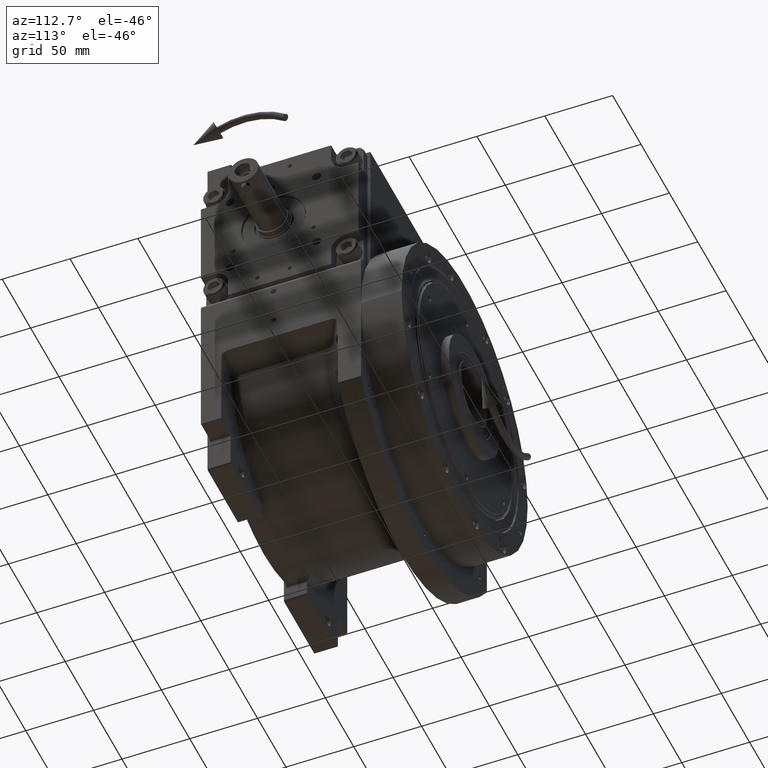
[diagram: clean part render]
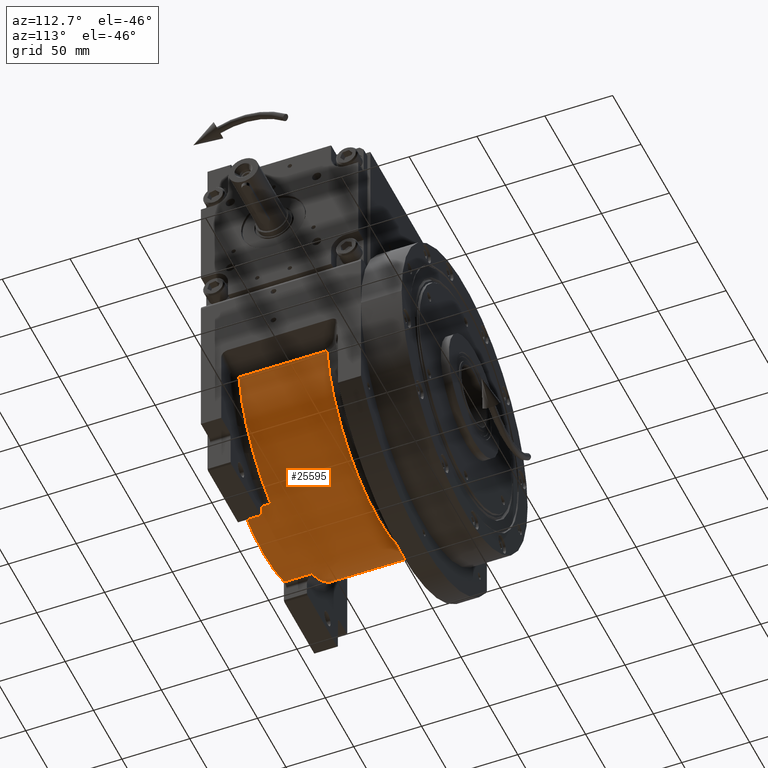
[diagram: same view with one face highlighted and labeled with its STEP entity id]
A machine part, auxiliary view. The second image highlights one B-rep face of the part: STEP entity #25595.
In plain terms, the highlighted cylindrical surface (partial cylindrical patch) has radius 93 mm, axis along (0, 1, 0).
Its self-contained STEP definition (entity closure, byte-faithful):
#5184 = VERTEX_POINT ( 'NONE', #58877 ) ;
#6694 = CARTESIAN_POINT ( 'NONE',  ( -91.75016228501930016, -33.50000000000000000, -15.19564808333695183 ) ) ;
#8334 = EDGE_CURVE ( 'NONE', #34785, #23194, #46282, .T. ) ;
#12113 = EDGE_CURVE ( 'NONE', #22122, #5184, #26976, .T. ) ;
#12313 = CARTESIAN_POINT ( 'NONE',  ( -91.75030103113060420, 31.21878279875124917, -15.19503959111690072 ) ) ;
#12452 = AXIS2_PLACEMENT_3D ( 'NONE', #29819, #30529, #30862 ) ;
#12749 = CARTESIAN_POINT ( 'NONE',  ( 1.421085471520200056E-14, -53.50000000000000000, -4.263256414560599853E-14 ) ) ;
#13279 = ORIENTED_EDGE ( 'NONE', *, *, #47277, .T. ) ;
#14005 = VERTEX_POINT ( 'NONE', #25143 ) ;
#14776 = VECTOR ( 'NONE', #16437, 1000.000000000000000 ) ;
#15525 = AXIS2_PLACEMENT_3D ( 'NONE', #32983, #38231, #54364 ) ;
#16437 = DIRECTION ( 'NONE',  ( 1.776356839400250070E-15, 1.000000000000000000, -7.105427357601000281E-16 ) ) ;
#17989 = CIRCLE ( 'NONE', #12452, 93.00000000000001421 ) ;
#22122 = VERTEX_POINT ( 'NONE', #57634 ) ;
#22787 = FACE_OUTER_BOUND ( 'NONE', #36776, .T. ) ;
#22978 = CARTESIAN_POINT ( 'NONE',  ( -91.75016228508779648, -33.50000000000000000, -15.19564808292360070 ) ) ;
#23194 = VERTEX_POINT ( 'NONE', #50063 ) ;
#24161 = EDGE_CURVE ( 'NONE', #14005, #34785, #44844, .T. ) ;
#24274 = ORIENTED_EDGE ( 'NONE', *, *, #29477, .F. ) ;
#24845 = CARTESIAN_POINT ( 'NONE',  ( 91.75016228514499517, -33.50000000000000000, -15.19564808257825028 ) ) ;
#25143 = CARTESIAN_POINT ( 'NONE',  ( 91.75016228501930016, 31.21878281274259948, -15.19564808333685058 ) ) ;
#25250 = CARTESIAN_POINT ( 'NONE',  ( 1.421085471520200056E-14, -33.50000000000000000, 1.421085471520200056E-14 ) ) ;
#25595 = ADVANCED_FACE ( 'NONE', ( #22787 ), #64873, .T. ) ;
#26281 = VERTEX_POINT ( 'NONE', #22978 ) ;
#26976 = LINE ( 'NONE', #64831, #14776 ) ;
#28399 = ORIENTED_EDGE ( 'NONE', *, *, #49585, .T. ) ;
#28751 = CIRCLE ( 'NONE', #69027, 92.99999999999995737 ) ;
#29477 = EDGE_CURVE ( 'NONE', #14005, #43756, #17989, .T. ) ;
#29819 = CARTESIAN_POINT ( 'NONE',  ( 1.421085471520200056E-14, 31.21878281274215183, 0.000000000000000000 ) ) ;
#30222 = DIRECTION ( 'NONE',  ( 0.000000000000000000, 1.000000000000000000, 0.000000000000000000 ) ) ;
#30529 = DIRECTION ( 'NONE',  ( 5.743225055535190204E-15, 1.000000000000000000, 2.439003765979129920E-14 ) ) ;
#30862 = DIRECTION ( 'NONE',  ( 0.9865608847851539132, -1.678764654171103455E-15, -0.1633940654122239822 ) ) ;
#32983 = CARTESIAN_POINT ( 'NONE',  ( -4.517455316885850268E-28, -53.50000000000000000, 0.000000000000000000 ) ) ;
#34347 = CARTESIAN_POINT ( 'NONE',  ( 91.75016228501930016, 31.21878281274199907, -15.19564808333685058 ) ) ;
#34785 = VERTEX_POINT ( 'NONE', #24845 ) ;
#36776 = EDGE_LOOP ( 'NONE', ( #68263, #54709, #28399, #42315, #24274, #66809, #38997, #13279 ) ) ;
#37628 = VECTOR ( 'NONE', #64174, 1000.000000000000000 ) ;
#38216 = LINE ( 'NONE', #6694, #37628 ) ;
#38231 = DIRECTION ( 'NONE',  ( 0.000000000000000000, 1.000000000000000000, 0.000000000000000000 ) ) ;
#38997 = ORIENTED_EDGE ( 'NONE', *, *, #8334, .T. ) ;
#39581 = CIRCLE ( 'NONE', #55272, 93.00000000000001421 ) ;
#40595 = EDGE_CURVE ( 'NONE', #22122, #68628, #28751, .T. ) ;
#42315 = ORIENTED_EDGE ( 'NONE', *, *, #52198, .T. ) ;
#43756 = VERTEX_POINT ( 'NONE', #12313 ) ;
#44424 = VECTOR ( 'NONE', #55743, 1000.000000000000000 ) ;
#44844 = LINE ( 'NONE', #34347, #44424 ) ;
#45456 = CARTESIAN_POINT ( 'NONE',  ( 35.84375000000000000, -33.50000000000000000, -85.81506619433150718 ) ) ;
#46282 = CIRCLE ( 'NONE', #58656, 93.00000000000001421 ) ;
#47277 = EDGE_CURVE ( 'NONE', #23194, #68628, #50436, .T. ) ;
#49392 = DIRECTION ( 'NONE',  ( 0.000000000000000000, -1.000000000000000000, 0.000000000000000000 ) ) ;
#49473 = VECTOR ( 'NONE', #49392, 1000.000000000000000 ) ;
#49585 = EDGE_CURVE ( 'NONE', #5184, #26281, #39581, .T. ) ;
#50063 = CARTESIAN_POINT ( 'NONE',  ( 35.84375000000000000, -33.50000000000000000, -85.81506619433150718 ) ) ;
#50244 = DIRECTION ( 'NONE',  ( -0.3854166666666672403, 0.000000000000000000, -0.9227426472508764022 ) ) ;
#50436 = LINE ( 'NONE', #45456, #49473 ) ;
#52198 = EDGE_CURVE ( 'NONE', #26281, #43756, #38216, .T. ) ;
#52280 = CARTESIAN_POINT ( 'NONE',  ( -5.684341886080798963E-14, -33.50000000000000000, -4.973799150320699408E-14 ) ) ;
#54364 = DIRECTION ( 'NONE',  ( 0.000000000000000000, 0.000000000000000000, 1.000000000000000000 ) ) ;
#54709 = ORIENTED_EDGE ( 'NONE', *, *, #12113, .T. ) ;
#55272 = AXIS2_PLACEMENT_3D ( 'NONE', #52280, #30222, #68772 ) ;
#55743 = DIRECTION ( 'NONE',  ( 0.000000000000000000, -1.000000000000000000, 0.000000000000000000 ) ) ;
#57173 = DIRECTION ( 'NONE',  ( 0.9865608847878558629, 0.000000000000000000, -0.1633940653959109757 ) ) ;
#57634 = CARTESIAN_POINT ( 'NONE',  ( -35.84375000000000000, -53.50000000000000000, -85.81506619433150718 ) ) ;
#58656 = AXIS2_PLACEMENT_3D ( 'NONE', #25250, #62423, #57173 ) ;
#58877 = CARTESIAN_POINT ( 'NONE',  ( -35.84375000000000000, -33.50000000000000000, -85.81506619433150718 ) ) ;
#60835 = CARTESIAN_POINT ( 'NONE',  ( 35.84375000000000000, -53.50000000000000000, -85.81506619433150718 ) ) ;
#62423 = DIRECTION ( 'NONE',  ( 0.000000000000000000, 1.000000000000000000, 0.000000000000000000 ) ) ;
#64174 = DIRECTION ( 'NONE',  ( 0.000000000000000000, 1.000000000000000000, 0.000000000000000000 ) ) ;
#64831 = CARTESIAN_POINT ( 'NONE',  ( -35.84375000000000000, -53.50000000000000000, -85.81506619433150718 ) ) ;
#64873 = CYLINDRICAL_SURFACE ( 'NONE', #15525, 93.00000000000000000 ) ;
#66809 = ORIENTED_EDGE ( 'NONE', *, *, #24161, .T. ) ;
#67975 = DIRECTION ( 'NONE',  ( 0.000000000000000000, -1.000000000000000000, 0.000000000000000000 ) ) ;
#68263 = ORIENTED_EDGE ( 'NONE', *, *, #40595, .F. ) ;
#68628 = VERTEX_POINT ( 'NONE', #60835 ) ;
#68772 = DIRECTION ( 'NONE',  ( -0.3854166666666659080, 0.000000000000000000, -0.9227426472508768462 ) ) ;
#69027 = AXIS2_PLACEMENT_3D ( 'NONE', #12749, #67975, #50244 ) ;